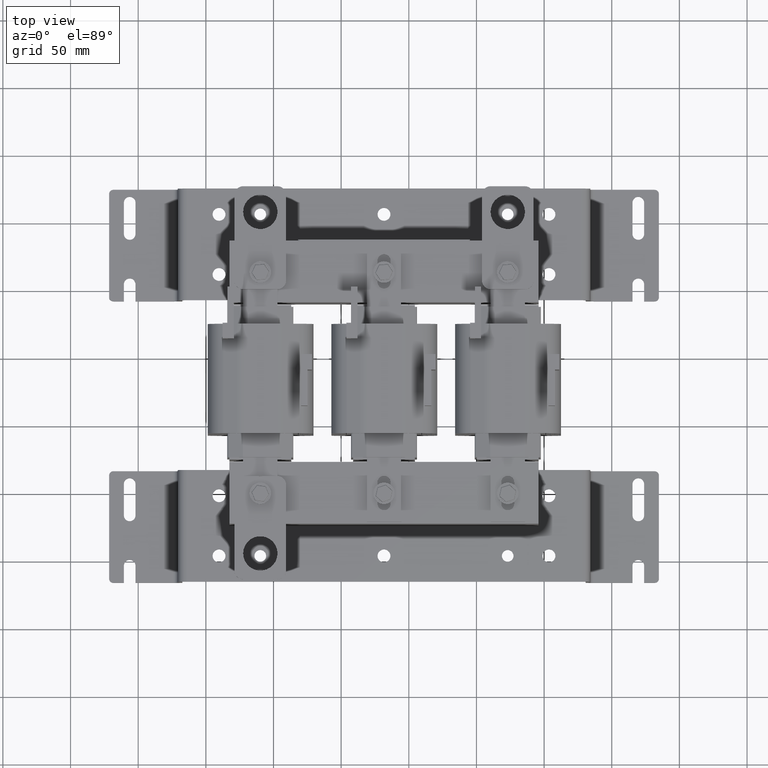
[diagram: clean part render]
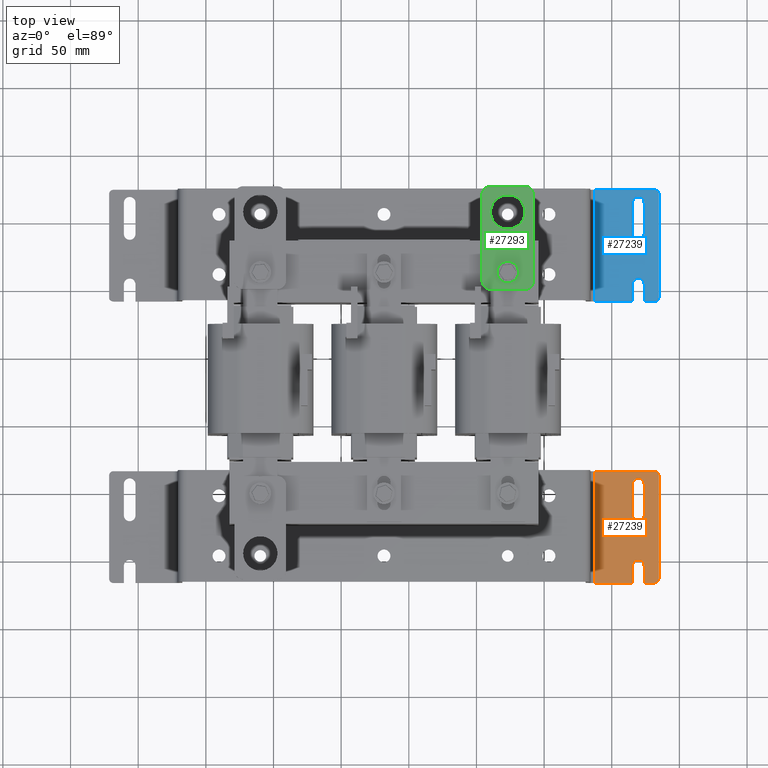
[diagram: same view with three faces highlighted in distinct colors, each labeled with its STEP entity id]
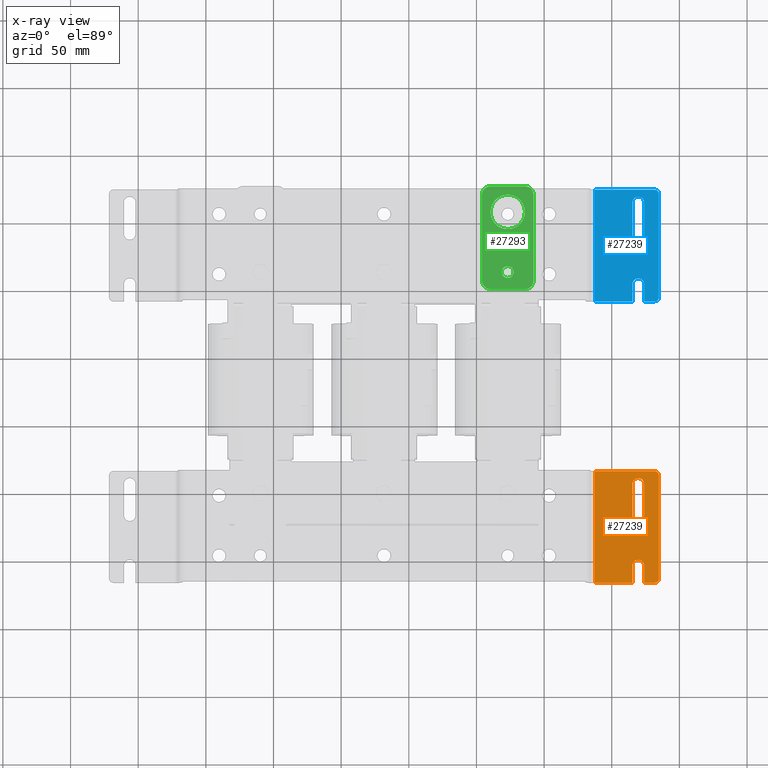
[diagram: x-ray of the same camera — body ghosted, the three highlighted faces saturated]
A machine part, top view with three faces highlighted in distinct colors.
The next image is the same camera in x-ray (body ghosted, the three faces saturated) — at least one of them is partly hidden behind the body in this view.
Their STEP definitions:

[orange] entity #27239 — the highlighted planar face has unit normal (0, 0, 1).
#938=FACE_BOUND('',#3914,.T.);
#1309=PLANE('',#29078);
#2373=FACE_OUTER_BOUND('',#3913,.T.);
#3913=EDGE_LOOP('',(#20952,#20953,#20954,#20955,#20956,#20957,#20958,#20959,
#20960,#20961));
#3914=EDGE_LOOP('',(#20962,#20963,#20964,#20965));
#5871=LINE('',#44173,#8590);
#5875=LINE('',#44182,#8594);
#5879=LINE('',#44194,#8598);
#5883=LINE('',#44206,#8602);
#5890=LINE('',#44222,#8609);
#5891=LINE('',#44225,#8610);
#5898=LINE('',#44245,#8617);
#5899=LINE('',#44249,#8618);
#5900=LINE('',#44250,#8619);
#8590=VECTOR('',#32816,0.393700787401575);
#8594=VECTOR('',#32822,0.393700787401575);
#8598=VECTOR('',#32834,0.393700787401575);
#8602=VECTOR('',#32846,0.393700787401575);
#8609=VECTOR('',#32863,0.19368);
#8610=VECTOR('',#32866,0.19368);
#8617=VECTOR('',#32883,0.393700787401575);
#8618=VECTOR('',#32886,0.19368);
#8619=VECTOR('',#32887,0.393700787401575);
#10480=CIRCLE('',#29063,0.17);
#10482=CIRCLE('',#29067,0.17);
#10484=CIRCLE('',#29071,0.17);
#10487=CIRCLE('',#29079,0.125);
#10488=CIRCLE('',#29080,0.125);
#12275=VERTEX_POINT('',#44170);
#12276=VERTEX_POINT('',#44172);
#12279=VERTEX_POINT('',#44179);
#12280=VERTEX_POINT('',#44181);
#12283=VERTEX_POINT('',#44191);
#12284=VERTEX_POINT('',#44193);
#12286=VERTEX_POINT('',#44199);
#12288=VERTEX_POINT('',#44205);
#12292=VERTEX_POINT('',#44220);
#12293=VERTEX_POINT('',#44224);
#12300=VERTEX_POINT('',#44242);
#12301=VERTEX_POINT('',#44244);
#12302=VERTEX_POINT('',#44246);
#12303=VERTEX_POINT('',#44248);
#15445=EDGE_CURVE('',#12276,#12275,#5871,.T.);
#15449=EDGE_CURVE('',#12280,#12279,#5875,.T.);
#15452=EDGE_CURVE('',#12275,#12280,#10480,.T.);
#15455=EDGE_CURVE('',#12284,#12283,#5879,.T.);
#15458=EDGE_CURVE('',#12286,#12284,#10482,.T.);
#15461=EDGE_CURVE('',#12288,#12286,#5883,.T.);
#15464=EDGE_CURVE('',#12283,#12288,#10484,.T.);
#15470=EDGE_CURVE('',#12292,#12279,#5890,.T.);
#15471=EDGE_CURVE('',#12276,#12293,#5891,.T.);
#15480=EDGE_CURVE('',#12300,#12292,#10487,.T.);
#15481=EDGE_CURVE('',#12300,#12301,#5898,.T.);
#15482=EDGE_CURVE('',#12302,#12301,#10488,.T.);
#15483=EDGE_CURVE('',#12302,#12303,#5899,.T.);
#15484=EDGE_CURVE('',#12303,#12293,#5900,.T.);
#20952=ORIENTED_EDGE('',*,*,#15445,.T.);
#20953=ORIENTED_EDGE('',*,*,#15452,.T.);
#20954=ORIENTED_EDGE('',*,*,#15449,.T.);
#20955=ORIENTED_EDGE('',*,*,#15470,.F.);
#20956=ORIENTED_EDGE('',*,*,#15480,.F.);
#20957=ORIENTED_EDGE('',*,*,#15481,.T.);
#20958=ORIENTED_EDGE('',*,*,#15482,.F.);
#20959=ORIENTED_EDGE('',*,*,#15483,.T.);
#20960=ORIENTED_EDGE('',*,*,#15484,.T.);
#20961=ORIENTED_EDGE('',*,*,#15471,.F.);
#20962=ORIENTED_EDGE('',*,*,#15461,.T.);
#20963=ORIENTED_EDGE('',*,*,#15458,.T.);
#20964=ORIENTED_EDGE('',*,*,#15455,.T.);
#20965=ORIENTED_EDGE('',*,*,#15464,.T.);
#27239=ADVANCED_FACE('',(#2373,#938),#1309,.T.);
#29063=AXIS2_PLACEMENT_3D('',#44186,#32828,#32829);
#29067=AXIS2_PLACEMENT_3D('',#44200,#32840,#32841);
#29071=AXIS2_PLACEMENT_3D('',#44210,#32852,#32853);
#29078=AXIS2_PLACEMENT_3D('',#44241,#32879,#32880);
#29079=AXIS2_PLACEMENT_3D('',#44243,#32881,#32882);
#29080=AXIS2_PLACEMENT_3D('',#44247,#32884,#32885);
#32816=DIRECTION('',(-4.30371130078804E-16,1.,-9.31321286297658E-16));
#32822=DIRECTION('',(4.30371130078804E-16,-1.,9.31321286297658E-16));
#32828=DIRECTION('center_axis',(-8.69360745590906E-15,-9.31321286297662E-16,
-1.));
#32829=DIRECTION('ref_axis',(1.,-8.38590804932919E-17,-2.79741234551221E-15));
#32834=DIRECTION('',(-4.30371130078804E-16,1.,-9.31321286297658E-16));
#32840=DIRECTION('center_axis',(-8.69360745590906E-15,-9.31321286297662E-16,
-1.));
#32841=DIRECTION('ref_axis',(-1.,-4.30371130078801E-16,2.79741234551221E-15));
#32846=DIRECTION('',(4.30371130078804E-16,-1.,9.31321286297658E-16));
#32852=DIRECTION('center_axis',(-8.69360745590906E-15,-9.31321286297662E-16,
-1.));
#32853=DIRECTION('ref_axis',(1.,4.30371130078801E-16,-2.79741234551221E-15));
#32863=DIRECTION('',(-1.,-1.65458387990231E-15,2.58367567325932E-15));
#32866=DIRECTION('',(-1.,-1.65458387990231E-15,2.58367567325932E-15));
#32879=DIRECTION('center_axis',(8.69360745590906E-15,9.31321286297662E-16,
1.));
#32880=DIRECTION('ref_axis',(1.,3.63470489665915E-16,-8.69360745590906E-15));
#32881=DIRECTION('center_axis',(-8.69360745590906E-15,-9.31321286297662E-16,
-1.));
#32882=DIRECTION('ref_axis',(0.707106781186558,-0.707106781186537,-7.91227695714647E-15));
#32883=DIRECTION('',(-3.63470489665889E-16,1.,-1.78838516072809E-15));
#32884=DIRECTION('center_axis',(-8.69360745590906E-15,-9.31321286297662E-16,
-1.));
#32885=DIRECTION('ref_axis',(0.707106781186557,0.707106781186538,-7.91227695714645E-15));
#32886=DIRECTION('',(-1.,-1.65458387990231E-15,9.80541345081052E-15));
#32887=DIRECTION('',(1.65458387990232E-15,-1.,9.31321286297648E-16));
#44170=CARTESIAN_POINT('',(13.23,0.500000000000005,-1.98100000000002));
#44172=CARTESIAN_POINT('',(13.23,2.18547839493141E-15,-1.98100000000002));
#44173=CARTESIAN_POINT('',(13.23,0.764659543391788,-1.98100000000001));
#44179=CARTESIAN_POINT('',(13.57,2.67721103379098E-15,-1.98100000000002));
#44181=CARTESIAN_POINT('',(13.57,0.500000000000005,-1.98100000000002));
#44182=CARTESIAN_POINT('',(13.57,1.0625,-1.98100000000001));
#44186=CARTESIAN_POINT('Origin',(13.4,0.500000000000005,-1.98100000000001));
#44191=CARTESIAN_POINT('',(13.23,2.87500000000001,-1.98100000000002));
#44193=CARTESIAN_POINT('',(13.23,1.96500000000001,-1.98100000000002));
#44194=CARTESIAN_POINT('',(13.23,1.795,-1.98100000000001));
#44199=CARTESIAN_POINT('',(13.57,1.96500000000001,-1.98100000000002));
#44200=CARTESIAN_POINT('Origin',(13.4,1.96500000000001,-1.98100000000001));
#44205=CARTESIAN_POINT('',(13.57,2.87500000000001,-1.98100000000002));
#44206=CARTESIAN_POINT('',(13.57,2.25,-1.98100000000002));
#44210=CARTESIAN_POINT('Origin',(13.4,2.87500000000001,-1.98100000000001));
#44220=CARTESIAN_POINT('',(13.875,3.45128593950684E-15,-1.981));
#44222=CARTESIAN_POINT('',(11.5260363348527,-4.3527147532207E-16,-1.981));
#44224=CARTESIAN_POINT('',(12.1345,5.71482696536883E-16,-1.981));
#44225=CARTESIAN_POINT('',(11.5260363348527,-4.3527147532207E-16,-1.981));
#44241=CARTESIAN_POINT('Origin',(12.9151340837132,1.625,-1.98100000000001));
#44242=CARTESIAN_POINT('',(14.,0.125000000000003,-1.98100000000002));
#44243=CARTESIAN_POINT('Origin',(13.875,0.125000000000003,-1.98100000000002));
#44244=CARTESIAN_POINT('',(14.,3.12500000000001,-1.98100000000002));
#44245=CARTESIAN_POINT('',(14.,3.22286289238327E-15,-1.98100000000001));
#44246=CARTESIAN_POINT('',(13.875,3.25000000000001,-1.98100000000002));
#44247=CARTESIAN_POINT('Origin',(13.875,3.12500000000001,-1.98100000000002));
#44248=CARTESIAN_POINT('',(12.1345,3.25,-1.981));
#44249=CARTESIAN_POINT('',(11.5260363348527,3.25,-1.981));
#44250=CARTESIAN_POINT('',(12.1345,1.625,-1.981));

[blue] entity #27239 — the highlighted planar face has unit normal (0, 0, 1).
#938=FACE_BOUND('',#3914,.T.);
#1309=PLANE('',#29078);
#2373=FACE_OUTER_BOUND('',#3913,.T.);
#3913=EDGE_LOOP('',(#20952,#20953,#20954,#20955,#20956,#20957,#20958,#20959,
#20960,#20961));
#3914=EDGE_LOOP('',(#20962,#20963,#20964,#20965));
#5871=LINE('',#44173,#8590);
#5875=LINE('',#44182,#8594);
#5879=LINE('',#44194,#8598);
#5883=LINE('',#44206,#8602);
#5890=LINE('',#44222,#8609);
#5891=LINE('',#44225,#8610);
#5898=LINE('',#44245,#8617);
#5899=LINE('',#44249,#8618);
#5900=LINE('',#44250,#8619);
#8590=VECTOR('',#32816,0.393700787401575);
#8594=VECTOR('',#32822,0.393700787401575);
#8598=VECTOR('',#32834,0.393700787401575);
#8602=VECTOR('',#32846,0.393700787401575);
#8609=VECTOR('',#32863,0.19368);
#8610=VECTOR('',#32866,0.19368);
#8617=VECTOR('',#32883,0.393700787401575);
#8618=VECTOR('',#32886,0.19368);
#8619=VECTOR('',#32887,0.393700787401575);
#10480=CIRCLE('',#29063,0.17);
#10482=CIRCLE('',#29067,0.17);
#10484=CIRCLE('',#29071,0.17);
#10487=CIRCLE('',#29079,0.125);
#10488=CIRCLE('',#29080,0.125);
#12275=VERTEX_POINT('',#44170);
#12276=VERTEX_POINT('',#44172);
#12279=VERTEX_POINT('',#44179);
#12280=VERTEX_POINT('',#44181);
#12283=VERTEX_POINT('',#44191);
#12284=VERTEX_POINT('',#44193);
#12286=VERTEX_POINT('',#44199);
#12288=VERTEX_POINT('',#44205);
#12292=VERTEX_POINT('',#44220);
#12293=VERTEX_POINT('',#44224);
#12300=VERTEX_POINT('',#44242);
#12301=VERTEX_POINT('',#44244);
#12302=VERTEX_POINT('',#44246);
#12303=VERTEX_POINT('',#44248);
#15445=EDGE_CURVE('',#12276,#12275,#5871,.T.);
#15449=EDGE_CURVE('',#12280,#12279,#5875,.T.);
#15452=EDGE_CURVE('',#12275,#12280,#10480,.T.);
#15455=EDGE_CURVE('',#12284,#12283,#5879,.T.);
#15458=EDGE_CURVE('',#12286,#12284,#10482,.T.);
#15461=EDGE_CURVE('',#12288,#12286,#5883,.T.);
#15464=EDGE_CURVE('',#12283,#12288,#10484,.T.);
#15470=EDGE_CURVE('',#12292,#12279,#5890,.T.);
#15471=EDGE_CURVE('',#12276,#12293,#5891,.T.);
#15480=EDGE_CURVE('',#12300,#12292,#10487,.T.);
#15481=EDGE_CURVE('',#12300,#12301,#5898,.T.);
#15482=EDGE_CURVE('',#12302,#12301,#10488,.T.);
#15483=EDGE_CURVE('',#12302,#12303,#5899,.T.);
#15484=EDGE_CURVE('',#12303,#12293,#5900,.T.);
#20952=ORIENTED_EDGE('',*,*,#15445,.T.);
#20953=ORIENTED_EDGE('',*,*,#15452,.T.);
#20954=ORIENTED_EDGE('',*,*,#15449,.T.);
#20955=ORIENTED_EDGE('',*,*,#15470,.F.);
#20956=ORIENTED_EDGE('',*,*,#15480,.F.);
#20957=ORIENTED_EDGE('',*,*,#15481,.T.);
#20958=ORIENTED_EDGE('',*,*,#15482,.F.);
#20959=ORIENTED_EDGE('',*,*,#15483,.T.);
#20960=ORIENTED_EDGE('',*,*,#15484,.T.);
#20961=ORIENTED_EDGE('',*,*,#15471,.F.);
#20962=ORIENTED_EDGE('',*,*,#15461,.T.);
#20963=ORIENTED_EDGE('',*,*,#15458,.T.);
#20964=ORIENTED_EDGE('',*,*,#15455,.T.);
#20965=ORIENTED_EDGE('',*,*,#15464,.T.);
#27239=ADVANCED_FACE('',(#2373,#938),#1309,.T.);
#29063=AXIS2_PLACEMENT_3D('',#44186,#32828,#32829);
#29067=AXIS2_PLACEMENT_3D('',#44200,#32840,#32841);
#29071=AXIS2_PLACEMENT_3D('',#44210,#32852,#32853);
#29078=AXIS2_PLACEMENT_3D('',#44241,#32879,#32880);
#29079=AXIS2_PLACEMENT_3D('',#44243,#32881,#32882);
#29080=AXIS2_PLACEMENT_3D('',#44247,#32884,#32885);
#32816=DIRECTION('',(-4.30371130078804E-16,1.,-9.31321286297658E-16));
#32822=DIRECTION('',(4.30371130078804E-16,-1.,9.31321286297658E-16));
#32828=DIRECTION('center_axis',(-8.69360745590906E-15,-9.31321286297662E-16,
-1.));
#32829=DIRECTION('ref_axis',(1.,-8.38590804932919E-17,-2.79741234551221E-15));
#32834=DIRECTION('',(-4.30371130078804E-16,1.,-9.31321286297658E-16));
#32840=DIRECTION('center_axis',(-8.69360745590906E-15,-9.31321286297662E-16,
-1.));
#32841=DIRECTION('ref_axis',(-1.,-4.30371130078801E-16,2.79741234551221E-15));
#32846=DIRECTION('',(4.30371130078804E-16,-1.,9.31321286297658E-16));
#32852=DIRECTION('center_axis',(-8.69360745590906E-15,-9.31321286297662E-16,
-1.));
#32853=DIRECTION('ref_axis',(1.,4.30371130078801E-16,-2.79741234551221E-15));
#32863=DIRECTION('',(-1.,-1.65458387990231E-15,2.58367567325932E-15));
#32866=DIRECTION('',(-1.,-1.65458387990231E-15,2.58367567325932E-15));
#32879=DIRECTION('center_axis',(8.69360745590906E-15,9.31321286297662E-16,
1.));
#32880=DIRECTION('ref_axis',(1.,3.63470489665915E-16,-8.69360745590906E-15));
#32881=DIRECTION('center_axis',(-8.69360745590906E-15,-9.31321286297662E-16,
-1.));
#32882=DIRECTION('ref_axis',(0.707106781186558,-0.707106781186537,-7.91227695714647E-15));
#32883=DIRECTION('',(-3.63470489665889E-16,1.,-1.78838516072809E-15));
#32884=DIRECTION('center_axis',(-8.69360745590906E-15,-9.31321286297662E-16,
-1.));
#32885=DIRECTION('ref_axis',(0.707106781186557,0.707106781186538,-7.91227695714645E-15));
#32886=DIRECTION('',(-1.,-1.65458387990231E-15,9.80541345081052E-15));
#32887=DIRECTION('',(1.65458387990232E-15,-1.,9.31321286297648E-16));
#44170=CARTESIAN_POINT('',(13.23,0.500000000000005,-1.98100000000002));
#44172=CARTESIAN_POINT('',(13.23,2.18547839493141E-15,-1.98100000000002));
#44173=CARTESIAN_POINT('',(13.23,0.764659543391788,-1.98100000000001));
#44179=CARTESIAN_POINT('',(13.57,2.67721103379098E-15,-1.98100000000002));
#44181=CARTESIAN_POINT('',(13.57,0.500000000000005,-1.98100000000002));
#44182=CARTESIAN_POINT('',(13.57,1.0625,-1.98100000000001));
#44186=CARTESIAN_POINT('Origin',(13.4,0.500000000000005,-1.98100000000001));
#44191=CARTESIAN_POINT('',(13.23,2.87500000000001,-1.98100000000002));
#44193=CARTESIAN_POINT('',(13.23,1.96500000000001,-1.98100000000002));
#44194=CARTESIAN_POINT('',(13.23,1.795,-1.98100000000001));
#44199=CARTESIAN_POINT('',(13.57,1.96500000000001,-1.98100000000002));
#44200=CARTESIAN_POINT('Origin',(13.4,1.96500000000001,-1.98100000000001));
#44205=CARTESIAN_POINT('',(13.57,2.87500000000001,-1.98100000000002));
#44206=CARTESIAN_POINT('',(13.57,2.25,-1.98100000000002));
#44210=CARTESIAN_POINT('Origin',(13.4,2.87500000000001,-1.98100000000001));
#44220=CARTESIAN_POINT('',(13.875,3.45128593950684E-15,-1.981));
#44222=CARTESIAN_POINT('',(11.5260363348527,-4.3527147532207E-16,-1.981));
#44224=CARTESIAN_POINT('',(12.1345,5.71482696536883E-16,-1.981));
#44225=CARTESIAN_POINT('',(11.5260363348527,-4.3527147532207E-16,-1.981));
#44241=CARTESIAN_POINT('Origin',(12.9151340837132,1.625,-1.98100000000001));
#44242=CARTESIAN_POINT('',(14.,0.125000000000003,-1.98100000000002));
#44243=CARTESIAN_POINT('Origin',(13.875,0.125000000000003,-1.98100000000002));
#44244=CARTESIAN_POINT('',(14.,3.12500000000001,-1.98100000000002));
#44245=CARTESIAN_POINT('',(14.,3.22286289238327E-15,-1.98100000000001));
#44246=CARTESIAN_POINT('',(13.875,3.25000000000001,-1.98100000000002));
#44247=CARTESIAN_POINT('Origin',(13.875,3.12500000000001,-1.98100000000002));
#44248=CARTESIAN_POINT('',(12.1345,3.25,-1.981));
#44249=CARTESIAN_POINT('',(11.5260363348527,3.25,-1.981));
#44250=CARTESIAN_POINT('',(12.1345,1.625,-1.981));

[green] entity #27293 — the highlighted planar face has unit normal (0, 0, -1).
#963=FACE_BOUND('',#3993,.T.);
#964=FACE_BOUND('',#3994,.T.);
#1342=PLANE('',#29173);
#2427=FACE_OUTER_BOUND('',#3992,.T.);
#3992=EDGE_LOOP('',(#21224,#21225,#21226,#21227,#21228,#21229,#21230,#21231));
#3993=EDGE_LOOP('',(#21232));
#3994=EDGE_LOOP('',(#21233));
#5962=LINE('',#44440,#8681);
#5966=LINE('',#44452,#8685);
#5970=LINE('',#44464,#8689);
#5973=LINE('',#44473,#8692);
#8681=VECTOR('',#33107,0.393700787401575);
#8685=VECTOR('',#33119,0.393700787401575);
#8689=VECTOR('',#33131,0.393700787401575);
#8692=VECTOR('',#33142,0.393700787401575);
#10515=CIRCLE('',#29151,0.5);
#10517=CIRCLE('',#29154,0.1715);
#10520=CIRCLE('',#29158,0.25);
#10522=CIRCLE('',#29162,0.25);
#10524=CIRCLE('',#29166,0.25);
#10526=CIRCLE('',#29170,0.25);
#12343=VERTEX_POINT('',#44415);
#12345=VERTEX_POINT('',#44421);
#12349=VERTEX_POINT('',#44430);
#12350=VERTEX_POINT('',#44432);
#12352=VERTEX_POINT('',#44438);
#12354=VERTEX_POINT('',#44444);
#12356=VERTEX_POINT('',#44450);
#12358=VERTEX_POINT('',#44456);
#12360=VERTEX_POINT('',#44462);
#12362=VERTEX_POINT('',#44468);
#15566=EDGE_CURVE('',#12343,#12343,#10515,.T.);
#15569=EDGE_CURVE('',#12345,#12345,#10517,.T.);
#15574=EDGE_CURVE('',#12350,#12349,#10520,.T.);
#15578=EDGE_CURVE('',#12349,#12352,#5962,.T.);
#15581=EDGE_CURVE('',#12352,#12354,#10522,.T.);
#15584=EDGE_CURVE('',#12354,#12356,#5966,.T.);
#15587=EDGE_CURVE('',#12356,#12358,#10524,.T.);
#15590=EDGE_CURVE('',#12358,#12360,#5970,.T.);
#15593=EDGE_CURVE('',#12360,#12362,#10526,.T.);
#15595=EDGE_CURVE('',#12362,#12350,#5973,.T.);
#21224=ORIENTED_EDGE('',*,*,#15595,.T.);
#21225=ORIENTED_EDGE('',*,*,#15574,.T.);
#21226=ORIENTED_EDGE('',*,*,#15578,.T.);
#21227=ORIENTED_EDGE('',*,*,#15581,.T.);
#21228=ORIENTED_EDGE('',*,*,#15584,.T.);
#21229=ORIENTED_EDGE('',*,*,#15587,.T.);
#21230=ORIENTED_EDGE('',*,*,#15590,.T.);
#21231=ORIENTED_EDGE('',*,*,#15593,.T.);
#21232=ORIENTED_EDGE('',*,*,#15566,.T.);
#21233=ORIENTED_EDGE('',*,*,#15569,.T.);
#27293=ADVANCED_FACE('',(#2427,#963,#964),#1342,.F.);
#29151=AXIS2_PLACEMENT_3D('',#44416,#33083,#33084);
#29154=AXIS2_PLACEMENT_3D('',#44422,#33090,#33091);
#29158=AXIS2_PLACEMENT_3D('',#44433,#33100,#33101);
#29162=AXIS2_PLACEMENT_3D('',#44446,#33113,#33114);
#29166=AXIS2_PLACEMENT_3D('',#44458,#33125,#33126);
#29170=AXIS2_PLACEMENT_3D('',#44470,#33137,#33138);
#29173=AXIS2_PLACEMENT_3D('',#44475,#33145,#33146);
#33083=DIRECTION('center_axis',(0.,0.,1.));
#33084=DIRECTION('ref_axis',(-1.,0.,0.));
#33090=DIRECTION('center_axis',(0.,0.,1.));
#33091=DIRECTION('ref_axis',(-1.,0.,0.));
#33100=DIRECTION('center_axis',(0.,0.,-1.));
#33101=DIRECTION('ref_axis',(-1.,1.3987061727561E-15,0.));
#33107=DIRECTION('',(0.,-1.,0.));
#33113=DIRECTION('center_axis',(0.,0.,-1.));
#33114=DIRECTION('ref_axis',(2.09805925913416E-15,1.,0.));
#33119=DIRECTION('',(-1.,0.,0.));
#33125=DIRECTION('center_axis',(0.,0.,-1.));
#33126=DIRECTION('ref_axis',(1.,-8.74191357972565E-16,0.));
#33131=DIRECTION('',(5.24514814783539E-17,1.,0.));
#33137=DIRECTION('center_axis',(0.,0.,-1.));
#33138=DIRECTION('ref_axis',(-6.99353086378053E-16,-1.,0.));
#33142=DIRECTION('',(1.,3.49676543189026E-16,0.));
#33145=DIRECTION('center_axis',(0.,0.,1.));
#33146=DIRECTION('ref_axis',(1.,0.,0.));
#44415=CARTESIAN_POINT('',(1.25,2.25,0.));
#44416=CARTESIAN_POINT('Origin',(0.75,2.25,0.));
#44421=CARTESIAN_POINT('',(0.9215,0.5,0.));
#44422=CARTESIAN_POINT('Origin',(0.75,0.5,0.));
#44430=CARTESIAN_POINT('',(1.5,2.75,0.));
#44432=CARTESIAN_POINT('',(1.25,3.,0.));
#44433=CARTESIAN_POINT('Origin',(1.25,2.75,0.));
#44438=CARTESIAN_POINT('',(1.5,0.25,0.));
#44440=CARTESIAN_POINT('',(1.5,2.75,0.));
#44444=CARTESIAN_POINT('',(1.25,0.,0.));
#44446=CARTESIAN_POINT('Origin',(1.25,0.25,0.));
#44450=CARTESIAN_POINT('',(0.25,0.,0.));
#44452=CARTESIAN_POINT('',(1.25,0.,0.));
#44456=CARTESIAN_POINT('',(4.37095678986282E-17,0.25,0.));
#44458=CARTESIAN_POINT('Origin',(0.25,0.25,0.));
#44462=CARTESIAN_POINT('',(1.74838271594513E-16,2.75,0.));
#44464=CARTESIAN_POINT('',(4.37095678986282E-17,0.25,0.));
#44468=CARTESIAN_POINT('',(0.25,3.,0.));
#44470=CARTESIAN_POINT('Origin',(0.25,2.75,0.));
#44473=CARTESIAN_POINT('',(0.25,3.,0.));
#44475=CARTESIAN_POINT('Origin',(0.75,1.5,0.));